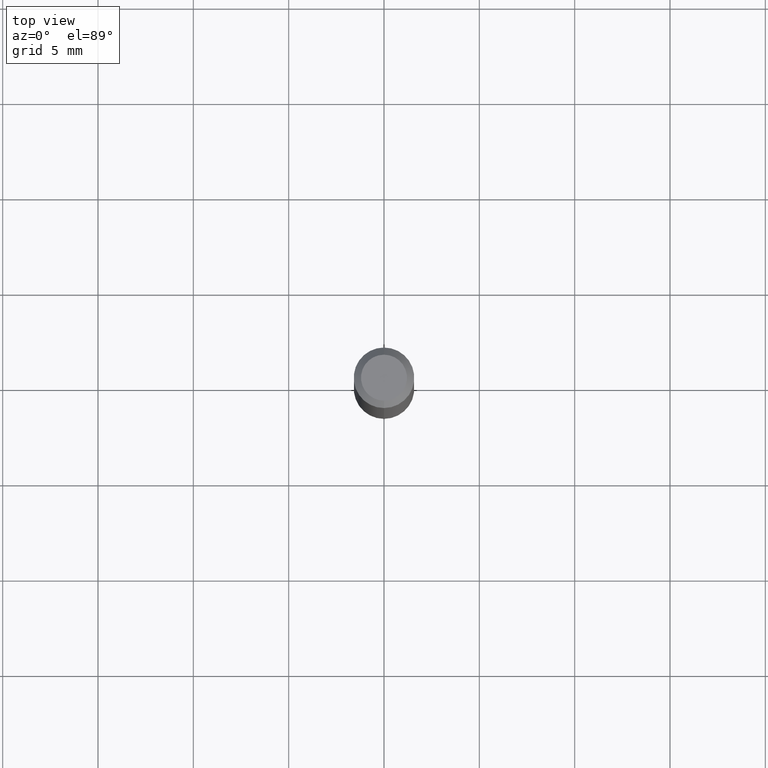
[diagram: clean part render]
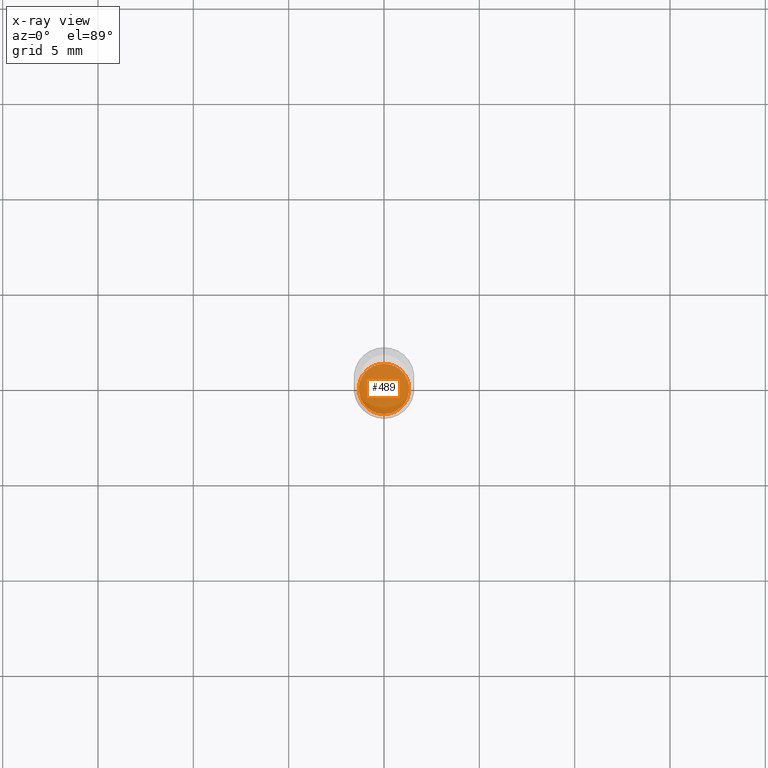
[diagram: x-ray — body ghosted, one internal face saturated and labeled with its STEP entity id]
A machine part, top view, then the same camera in x-ray: the body is ghosted and one INTERNAL B-rep face — a face not visible from any outside direction — is saturated and labeled: STEP entity #489.
In plain terms, the highlighted planar face has unit normal (-0, 0, 1).
Its self-contained STEP definition (entity closure, byte-faithful):
#1 = DIRECTION ( 'NONE',  ( -6.982962677686266711E-15, -1.000000000000000000, 5.253553833969737838E-15 ) ) ;
#125 = CARTESIAN_POINT ( 'NONE',  ( 3.281953443695754904E-29, -4.685375623184418108E-15, -1.342000000000000082 ) ) ;
#144 = CARTESIAN_POINT ( 'NONE',  ( 3.281953443695754904E-29, -4.685375623184418108E-15, -1.342000000000000082 ) ) ;
#149 = CARTESIAN_POINT ( 'NONE',  ( 3.281953443695754904E-29, -4.685375623184418108E-15, -1.342000000000000082 ) ) ;
#156 = CIRCLE ( 'NONE', #303, 0.05199999999999999067 ) ;
#176 = CARTESIAN_POINT ( 'NONE',  ( -3.631140592396529715E-16, -0.05200000000000468137, -1.341999999999999860 ) ) ;
#177 = VERTEX_POINT ( 'NONE', #176 ) ;
#230 = FACE_OUTER_BOUND ( 'NONE', #365, .T. ) ;
#242 = AXIS2_PLACEMENT_3D ( 'NONE', #144, #500, #468 ) ;
#276 = ORIENTED_EDGE ( 'NONE', *, *, #442, .F. ) ;
#278 = ORIENTED_EDGE ( 'NONE', *, *, #511, .F. ) ;
#279 = CIRCLE ( 'NONE', #452, 0.05199999999999999067 ) ;
#303 = AXIS2_PLACEMENT_3D ( 'NONE', #149, #462, #306 ) ;
#306 = DIRECTION ( 'NONE',  ( -6.982962677686266711E-15, -1.000000000000000000, 5.253553833969737838E-15 ) ) ;
#323 = CARTESIAN_POINT ( 'NONE',  ( 3.712585794346847736E-16, 0.05199999999999530692, -1.342000000000000304 ) ) ;
#329 = VERTEX_POINT ( 'NONE', #323 ) ;
#341 = PLANE ( 'NONE',  #242 ) ;
#365 = EDGE_LOOP ( 'NONE', ( #278, #276 ) ) ;
#442 = EDGE_CURVE ( 'NONE', #329, #177, #279, .T. ) ;
#445 = DIRECTION ( 'NONE',  ( -2.445568885019191806E-29, 3.491338020256645256E-15, 1.000000000000000000 ) ) ;
#452 = AXIS2_PLACEMENT_3D ( 'NONE', #125, #445, #1 ) ;
#462 = DIRECTION ( 'NONE',  ( -2.445568885019191806E-29, 3.491338020256645256E-15, 1.000000000000000000 ) ) ;
#468 = DIRECTION ( 'NONE',  ( -6.982962677686265922E-15, -1.000000000000000000, 3.491338020256645256E-15 ) ) ;
#489 = ADVANCED_FACE ( 'NONE', ( #230 ), #341, .F. ) ;
#500 = DIRECTION ( 'NONE',  ( -2.445568885019191245E-29, 3.491338020256645256E-15, 1.000000000000000000 ) ) ;
#511 = EDGE_CURVE ( 'NONE', #177, #329, #156, .T. ) ;